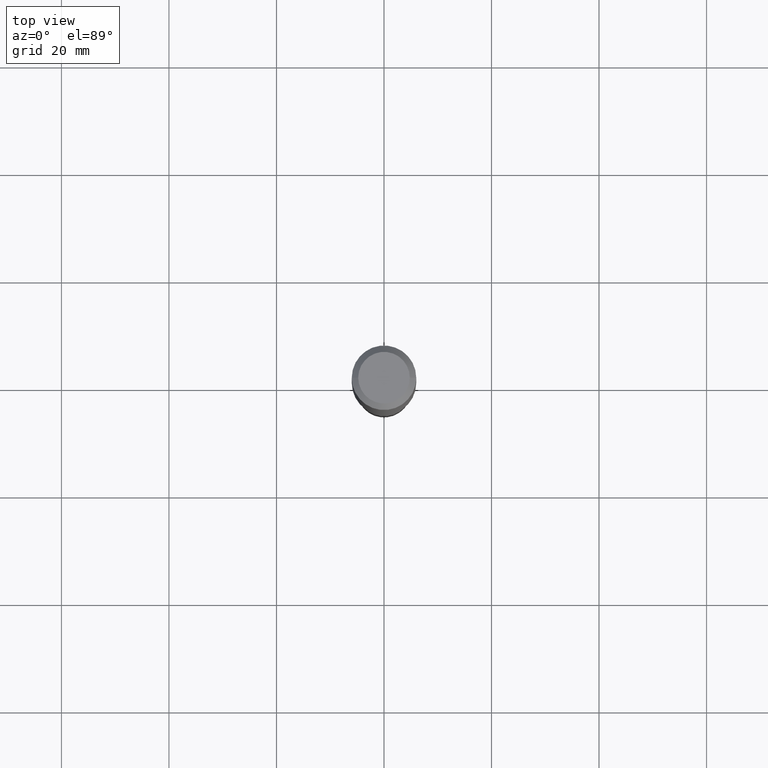
[diagram: clean part render]
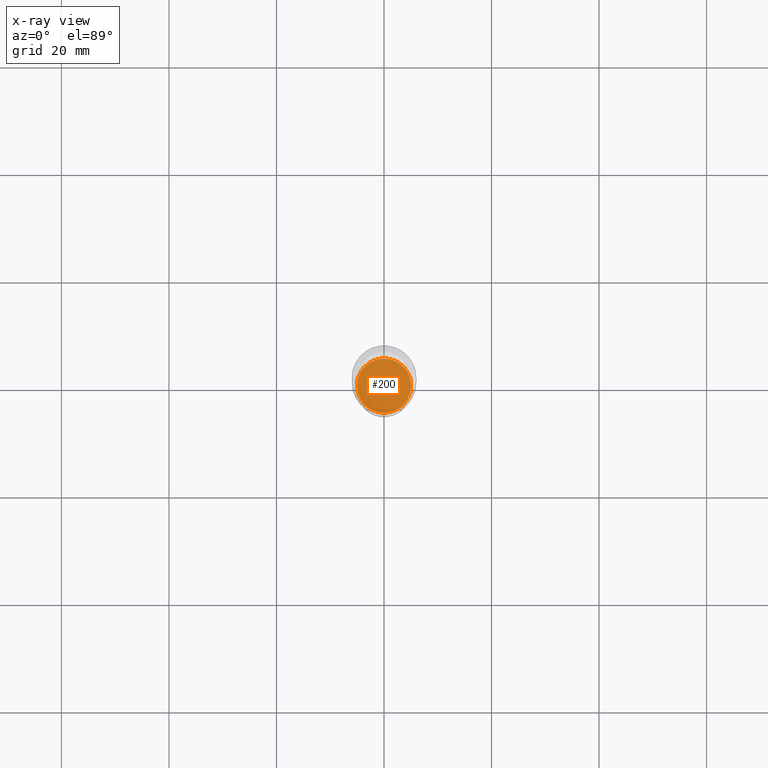
[diagram: x-ray — body ghosted, one internal face saturated and labeled with its STEP entity id]
A machine part, top view, then the same camera in x-ray: the body is ghosted and one INTERNAL B-rep face — a face not visible from any outside direction — is saturated and labeled: STEP entity #200.
In plain terms, the highlighted planar face has unit normal (-0, 0, 1).
Its self-contained STEP definition (entity closure, byte-faithful):
#2 = VERTEX_POINT ( 'NONE', #18 ) ;
#18 = CARTESIAN_POINT ( 'NONE',  ( -0.1983000000000000040, -1.034067071435963894E-14, -3.366000000000000103 ) ) ;
#22 = ORIENTED_EDGE ( 'NONE', *, *, #312, .F. ) ;
#30 = CARTESIAN_POINT ( 'NONE',  ( 8.231448001619171193E-29, -1.175232618654602903E-14, -3.366000000000000103 ) ) ;
#40 = FACE_OUTER_BOUND ( 'NONE', #84, .T. ) ;
#84 = EDGE_LOOP ( 'NONE', ( #201, #22 ) ) ;
#112 = DIRECTION ( 'NONE',  ( 1.000000000000000000, -6.982962677686265922E-15, 4.876176775795935793E-29 ) ) ;
#118 = VERTEX_POINT ( 'NONE', #156 ) ;
#124 = DIRECTION ( 'NONE',  ( -2.445468806185136597E-29, 3.491481338843145583E-15, 1.000000000000000000 ) ) ;
#156 = CARTESIAN_POINT ( 'NONE',  ( 0.1983000000000000040, -1.313704768553121615E-14, -3.366000000000000103 ) ) ;
#188 = DIRECTION ( 'NONE',  ( -2.438088387897960049E-29, 3.491481338843145188E-15, 1.000000000000000000 ) ) ;
#200 = ADVANCED_FACE ( 'NONE', ( #40 ), #344, .F. ) ;
#201 = ORIENTED_EDGE ( 'NONE', *, *, #329, .F. ) ;
#239 = AXIS2_PLACEMENT_3D ( 'NONE', #30, #188, #112 ) ;
#251 = DIRECTION ( 'NONE',  ( 1.000000000000000000, -6.982962677686265133E-15, 0.000000000000000000 ) ) ;
#312 = EDGE_CURVE ( 'NONE', #2, #118, #486, .T. ) ;
#314 = AXIS2_PLACEMENT_3D ( 'NONE', #455, #447, #482 ) ;
#329 = EDGE_CURVE ( 'NONE', #118, #2, #335, .T. ) ;
#335 = CIRCLE ( 'NONE', #314, 0.1983000000000000040 ) ;
#344 = PLANE ( 'NONE',  #239 ) ;
#375 = AXIS2_PLACEMENT_3D ( 'NONE', #461, #124, #251 ) ;
#447 = DIRECTION ( 'NONE',  ( -2.445468806185136597E-29, 3.491481338843145583E-15, 1.000000000000000000 ) ) ;
#455 = CARTESIAN_POINT ( 'NONE',  ( 8.231448001619171193E-29, -1.175232618654602903E-14, -3.366000000000000103 ) ) ;
#461 = CARTESIAN_POINT ( 'NONE',  ( 8.231448001619171193E-29, -1.175232618654602903E-14, -3.366000000000000103 ) ) ;
#482 = DIRECTION ( 'NONE',  ( 1.000000000000000000, -6.982962677686265133E-15, 0.000000000000000000 ) ) ;
#486 = CIRCLE ( 'NONE', #375, 0.1983000000000000040 ) ;